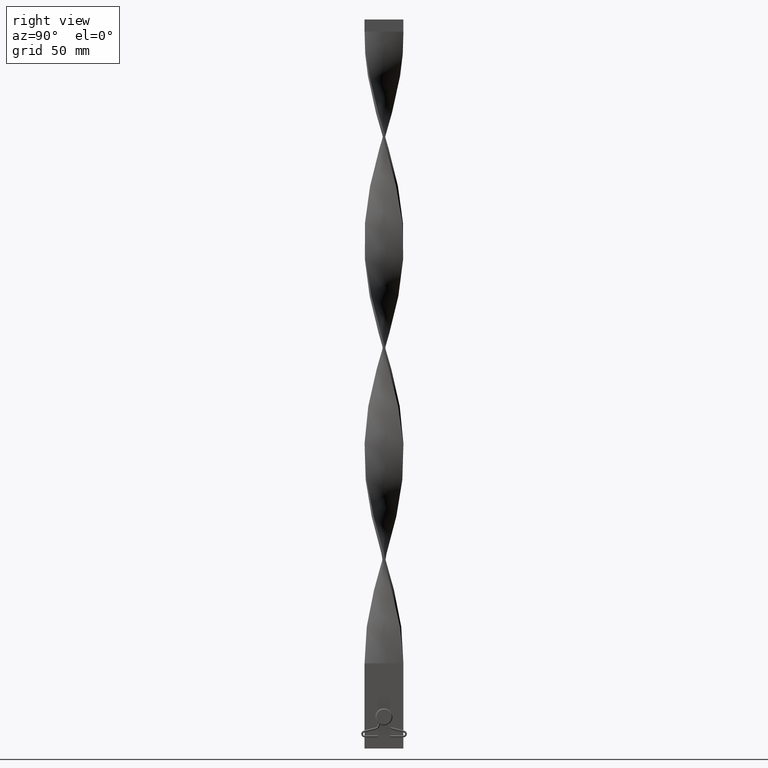
[diagram: clean part render]
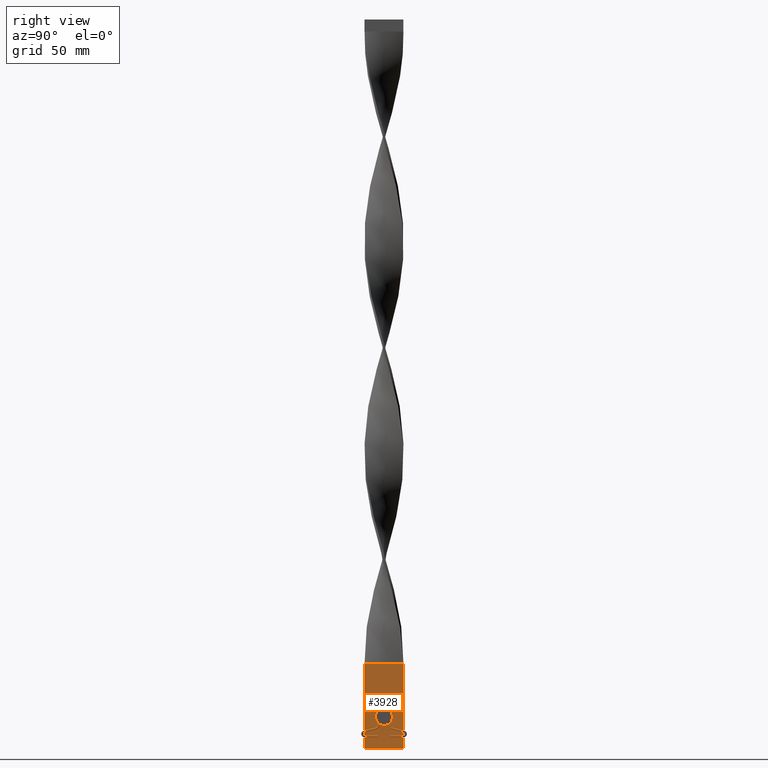
[diagram: same view with one face highlighted and labeled with its STEP entity id]
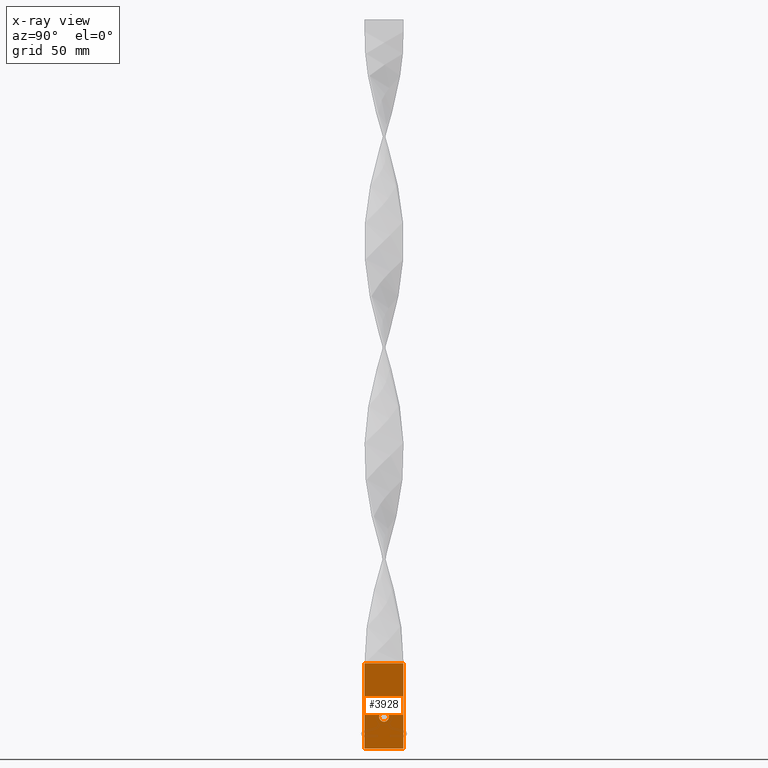
[diagram: x-ray of the same camera — body ghosted, the highlighted face saturated]
A machine part, right view. The second image highlights one B-rep face of the part: STEP entity #3928.
The next image is the same camera in x-ray: the body ghosted, the highlighted face saturated — about 0% of this face is hidden behind the body in this view.
In plain terms, the highlighted planar face has unit normal (1, 0, -0).
Its self-contained STEP definition (entity closure, byte-faithful):
#167 = CARTESIAN_POINT ( 'NONE',  ( 0.4999999999999989453, 7.999999999999998224, 35.00000000000000000 ) ) ;
#242 = ORIENTED_EDGE ( 'NONE', *, *, #2168, .F. ) ;
#558 = DIRECTION ( 'NONE',  ( 1.219727444046192488E-16, -1.000000000000000000, 0.000000000000000000 ) ) ;
#882 = DIRECTION ( 'NONE',  ( 1.000000000000000000, 3.794707603699264533E-16, 0.000000000000000000 ) ) ;
#898 = ORIENTED_EDGE ( 'NONE', *, *, #4407, .F. ) ;
#1001 = ORIENTED_EDGE ( 'NONE', *, *, #4597, .F. ) ;
#1115 = CARTESIAN_POINT ( 'NONE',  ( 0.4999999999999989453, 7.999999999999998224, 35.00000000000000000 ) ) ;
#1278 = VECTOR ( 'NONE', #3925, 1000.000000000000000 ) ;
#1302 = PLANE ( 'NONE',  #1524 ) ;
#1441 = DIRECTION ( 'NONE',  ( 1.000000000000000000, 3.794707603699264533E-16, 0.000000000000000000 ) ) ;
#1498 = EDGE_CURVE ( 'NONE', #1612, #4355, #2127, .T. ) ;
#1524 = AXIS2_PLACEMENT_3D ( 'NONE', #167, #1630, #3094 ) ;
#1553 = EDGE_CURVE ( 'NONE', #4611, #2648, #2902, .T. ) ;
#1573 = CARTESIAN_POINT ( 'NONE',  ( 0.4999999999999998890, 6.098637220230962441E-17, 13.00000000000000000 ) ) ;
#1612 = VERTEX_POINT ( 'NONE', #3586 ) ;
#1630 = DIRECTION ( 'NONE',  ( 1.000000000000000000, 1.219727444046192735E-16, -0.000000000000000000 ) ) ;
#1657 = CIRCLE ( 'NONE', #3113, 1.999999999999999556 ) ;
#1706 = CARTESIAN_POINT ( 'NONE',  ( 0.4999999999999989453, 7.999999999999998224, 0.000000000000000000 ) ) ;
#1744 = VECTOR ( 'NONE', #3574, 1000.000000000000000 ) ;
#1820 = VECTOR ( 'NONE', #558, 1000.000000000000000 ) ;
#1907 = CARTESIAN_POINT ( 'NONE',  ( 0.4999999999999989453, 7.999999999999998224, 0.000000000000000000 ) ) ;
#2127 = LINE ( 'NONE', #1115, #1278 ) ;
#2168 = EDGE_CURVE ( 'NONE', #2382, #2422, #1657, .T. ) ;
#2205 = ORIENTED_EDGE ( 'NONE', *, *, #1553, .T. ) ;
#2382 = VERTEX_POINT ( 'NONE', #4612 ) ;
#2422 = VERTEX_POINT ( 'NONE', #4659 ) ;
#2620 = CARTESIAN_POINT ( 'NONE',  ( 0.5000000000000008882, -8.000000000000001776, 0.000000000000000000 ) ) ;
#2648 = VERTEX_POINT ( 'NONE', #2620 ) ;
#2772 = CARTESIAN_POINT ( 'NONE',  ( 0.4999999999999989453, 7.999999999999998224, 35.00000000000000000 ) ) ;
#2820 = DIRECTION ( 'NONE',  ( -3.794707603699266505E-16, 1.000000000000000000, 0.000000000000000000 ) ) ;
#2880 = CARTESIAN_POINT ( 'NONE',  ( 0.5000000000000008882, -8.000000000000001776, 35.00000000000000000 ) ) ;
#2902 = LINE ( 'NONE', #3304, #3337 ) ;
#2972 = EDGE_LOOP ( 'NONE', ( #898, #242 ) ) ;
#3094 = DIRECTION ( 'NONE',  ( -1.219727444046192735E-16, 1.000000000000000000, 0.000000000000000000 ) ) ;
#3113 = AXIS2_PLACEMENT_3D ( 'NONE', #3627, #1441, #2820 ) ;
#3118 = LINE ( 'NONE', #2772, #1820 ) ;
#3304 = CARTESIAN_POINT ( 'NONE',  ( 0.5000000000000008882, -8.000000000000001776, 35.00000000000000000 ) ) ;
#3337 = VECTOR ( 'NONE', #4291, 1000.000000000000000 ) ;
#3362 = EDGE_LOOP ( 'NONE', ( #1001, #4418, #4050, #2205 ) ) ;
#3444 = FACE_BOUND ( 'NONE', #2972, .T. ) ;
#3521 = LINE ( 'NONE', #1706, #1744 ) ;
#3574 = DIRECTION ( 'NONE',  ( 1.219727444046192488E-16, -1.000000000000000000, 0.000000000000000000 ) ) ;
#3586 = CARTESIAN_POINT ( 'NONE',  ( 0.4999999999999989453, 7.999999999999998224, 35.00000000000000000 ) ) ;
#3627 = CARTESIAN_POINT ( 'NONE',  ( 0.4999999999999998890, 6.098637220230962441E-17, 13.00000000000000000 ) ) ;
#3875 = FACE_OUTER_BOUND ( 'NONE', #3362, .T. ) ;
#3884 = EDGE_CURVE ( 'NONE', #1612, #4611, #3118, .T. ) ;
#3925 = DIRECTION ( 'NONE',  ( -0.000000000000000000, -0.000000000000000000, -1.000000000000000000 ) ) ;
#3928 = ADVANCED_FACE ( 'NONE', ( #3444, #3875 ), #1302, .T. ) ;
#4050 = ORIENTED_EDGE ( 'NONE', *, *, #3884, .T. ) ;
#4181 = DIRECTION ( 'NONE',  ( -3.794707603699266505E-16, 1.000000000000000000, 0.000000000000000000 ) ) ;
#4291 = DIRECTION ( 'NONE',  ( -0.000000000000000000, -0.000000000000000000, -1.000000000000000000 ) ) ;
#4355 = VERTEX_POINT ( 'NONE', #1907 ) ;
#4407 = EDGE_CURVE ( 'NONE', #2422, #2382, #4665, .T. ) ;
#4418 = ORIENTED_EDGE ( 'NONE', *, *, #1498, .F. ) ;
#4588 = AXIS2_PLACEMENT_3D ( 'NONE', #1573, #882, #4181 ) ;
#4597 = EDGE_CURVE ( 'NONE', #4355, #2648, #3521, .T. ) ;
#4611 = VERTEX_POINT ( 'NONE', #2880 ) ;
#4612 = CARTESIAN_POINT ( 'NONE',  ( 0.4999999999999991673, 1.999999999999999556, 13.00000000000000000 ) ) ;
#4659 = CARTESIAN_POINT ( 'NONE',  ( 0.5000000000000006661, -1.999999999999999556, 13.00000000000000000 ) ) ;
#4665 = CIRCLE ( 'NONE', #4588, 1.999999999999999556 ) ;